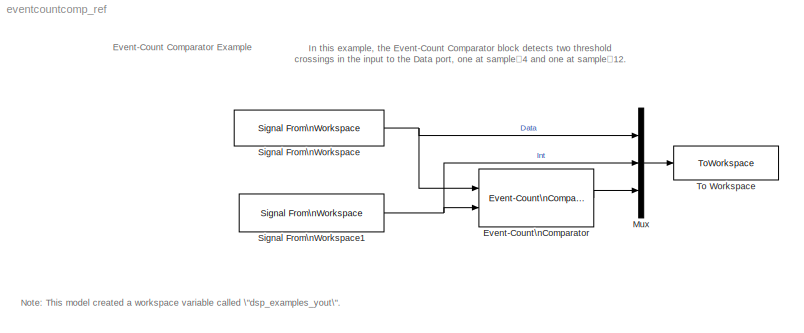
MODEL eventcountcomp_ref
KIND model
CONFIG AbsTol = auto
CONFIG FixedStep = auto
CONFIG MaxStep = auto
CONFIG MinStep = auto
CONFIG PostLoadFcn = set_param(gcs,'SimulationCommand','Update')
CONFIG RelTol = 1e-3
CONFIG Solver = FixedStepDiscrete
CONFIG SolverMode = Auto
CONFIG StartTime = 0.0
CONFIG StopTime = 30
BLOCK [Reference] Event-Count\nComparator  REF=dspswit3/Event-Count\nComparator
  Ports = [2, 1]
  SourceBlock = dspswit3/Event-Count\nComparator
  SourceType = Event-Count Comparator
  Threshold = 3
BLOCK [Mux] Mux
  DisplayOption = bar
  Inputs = 3
  Ports = [3, 1]
BLOCK [Reference] Signal From\nWorkspace  REF=dspsrcs4/Signal From\nWorkspace
  OutputAfterFinalValue = Setting to zero
  Ports = [0, 1]
  SourceBlock = dspsrcs4/Signal From\nWorkspace
  SourceType = Signal From Workspace
  Ts = 1
  X = [0 1 2 3 4 5 0 0 0 5 4 3 2 1 0]
  nsamps = 1
BLOCK [Reference] Signal From\nWorkspace1  REF=dspsrcs4/Signal From\nWorkspace
  OutputAfterFinalValue = Setting to zero
  Ports = [0, 1]
  SourceBlock = dspsrcs4/Signal From\nWorkspace
  SourceType = Signal From Workspace
  Ts = 1
  X = [0 1 1 1 1 1 0 0 1 1 1 1 1 1 0]
  nsamps = 1
BLOCK [ToWorkspace] To Workspace
  MaxDataPoints = inf
  SampleTime = -1
  SaveFormat = Array
  VariableName = dsp_examples_yout
ANNOTATION (root): Event-Count Comparator Example
ANNOTATION (root): In this example, the Event-Count Comparator block detects two threshold\ncrossings in the input to the Data port, one at sample 4 and one at sample 12.
ANNOTATION (root): Note: This model created a workspace variable called \"dsp_examples_yout\".
LINE Event-Count\nComparator:1 -> Mux:3
LINE Mux:1 -> To Workspace:1
NET Signal From\nWorkspace1:1 -> Event-Count\nComparator:2, Mux:2
NET Signal From\nWorkspace:1 -> Event-Count\nComparator:1, Mux:1
note: NET lines group one-source signal fan-out (src -> all destinations, sorted); 1:1 wires keep LINE
